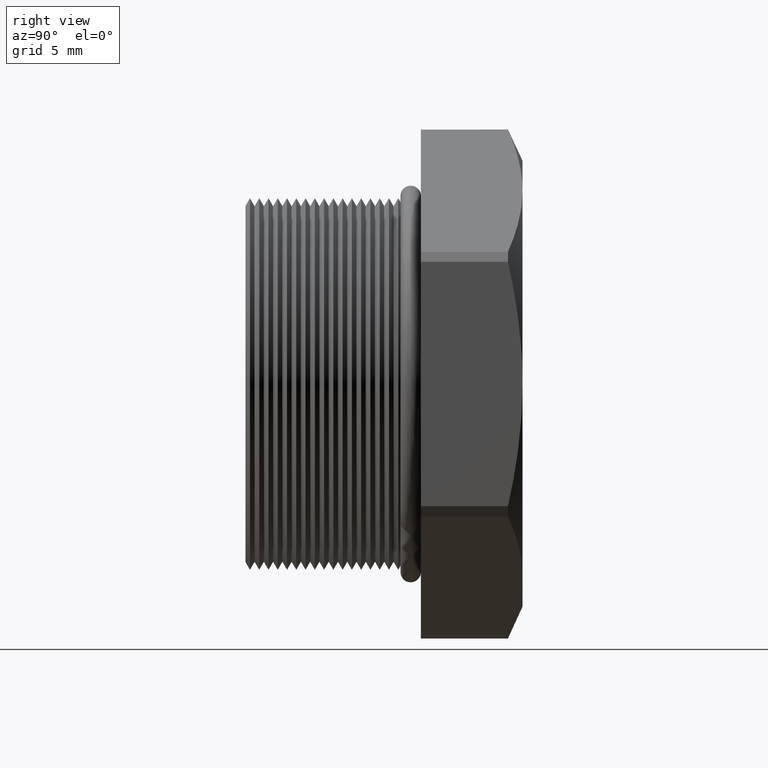
[diagram: clean part render]
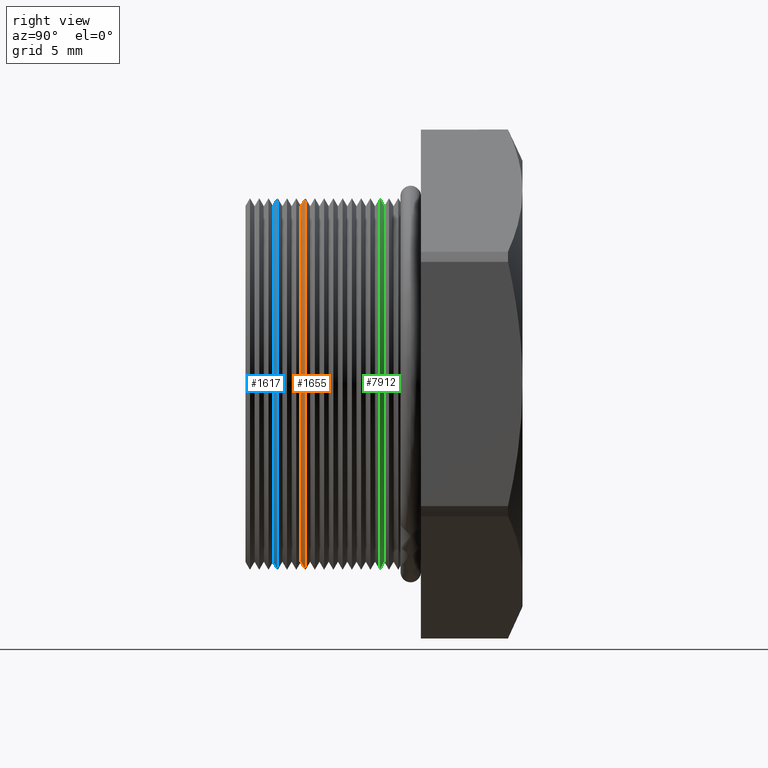
[diagram: same view with three faces highlighted in distinct colors, each labeled with its STEP entity id]
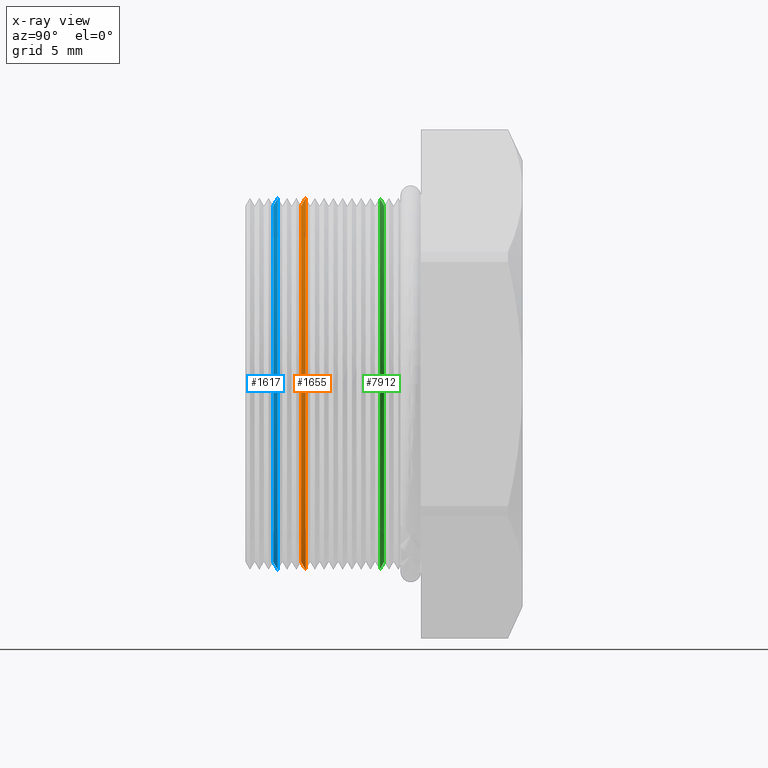
[diagram: x-ray of the same camera — body ghosted, the three highlighted faces saturated]
A machine part, right view with three faces highlighted in distinct colors.
The next image is the same camera in x-ray (body ghosted, the three faces saturated) — at least one of them is partly hidden behind the body in this view.
Their STEP definitions:

[orange] entity #1655 — the highlighted conical surface has half-angle 60 deg.
#1655 = ADVANCED_FACE ( 'NONE', ( #5710 ), #5709, .T. ) ;
#1708 = EDGE_LOOP ( 'NONE', ( #1709, #1713, #1716, #1719 ) ) ;
#1709 = ORIENTED_EDGE ( 'NONE', *, *, #1710, .T. ) ;
#1710 = EDGE_CURVE ( 'NONE', #1711, #1712, #5789, .T. ) ;
#1711 = VERTEX_POINT ( 'NONE', #5784 ) ;
#1712 = VERTEX_POINT ( 'NONE', #5783 ) ;
#1713 = ORIENTED_EDGE ( 'NONE', *, *, #1714, .T. ) ;
#1714 = EDGE_CURVE ( 'NONE', #1712, #1715, #5782, .T. ) ;
#1715 = VERTEX_POINT ( 'NONE', #5778 ) ;
#1716 = ORIENTED_EDGE ( 'NONE', *, *, #1717, .F. ) ;
#1717 = EDGE_CURVE ( 'NONE', #1718, #1715, #5840, .T. ) ;
#1718 = VERTEX_POINT ( 'NONE', #5835 ) ;
#1719 = ORIENTED_EDGE ( 'NONE', *, *, #1720, .F. ) ;
#1720 = EDGE_CURVE ( 'NONE', #1711, #1718, #5834, .T. ) ;
#5705 = DIRECTION ( 'NONE',  ( 0.0000000000000000000, 0.0000000000000000000, 1.000000000000000000 ) ) ;
#5706 = DIRECTION ( 'NONE',  ( -0.0000000000000000000, 1.000000000000000000, -0.0000000000000000000 ) ) ;
#5707 = CARTESIAN_POINT ( 'NONE',  ( 0.0000000000000000000, 0.02355489058294799000, 0.0000000000000000000 ) ) ;
#5708 = AXIS2_PLACEMENT_3D ( 'NONE', #5707, #5706, #5705 ) ;
#5709 = CONICAL_SURFACE ( 'NONE', #5708, 0.3287738815610546400, 1.047197551196596700 ) ;
#5710 = FACE_OUTER_BOUND ( 'NONE', #1708, .T. ) ;
#5778 = CARTESIAN_POINT ( 'NONE',  ( 0.0000000000000000000, 0.02355489058294799000, -0.3287738815610546400 ) ) ;
#5779 = DIRECTION ( 'NONE',  ( 1.060575238724906300E-016, 0.5000000000000008900, -0.8660254037844380400 ) ) ;
#5780 = VECTOR ( 'NONE', #5779, 39.37007874015748100 ) ;
#5781 = CARTESIAN_POINT ( 'NONE',  ( 4.026318816969965600E-017, 0.02355489058294799000, -0.3287738815610546400 ) ) ;
#5782 = LINE ( 'NONE', #5781, #5780 ) ;
#5783 = CARTESIAN_POINT ( 'NONE',  ( 0.0000000000000000000, 0.01560253635588704600, -0.3150000000000000000 ) ) ;
#5784 = CARTESIAN_POINT ( 'NONE',  ( 3.857637417314162700E-017, 0.01560253635588704600, 0.3150000000000000000 ) ) ;
#5785 = DIRECTION ( 'NONE',  ( 0.0000000000000000000, 0.0000000000000000000, 1.000000000000000000 ) ) ;
#5786 = DIRECTION ( 'NONE',  ( -0.0000000000000000000, 1.000000000000000000, -0.0000000000000000000 ) ) ;
#5787 = CARTESIAN_POINT ( 'NONE',  ( 0.0000000000000000000, 0.01560253635588704600, 0.0000000000000000000 ) ) ;
#5788 = AXIS2_PLACEMENT_3D ( 'NONE', #5787, #5786, #5785 ) ;
#5789 = CIRCLE ( 'NONE', #5788, 0.3150000000000000000 ) ;
#5831 = DIRECTION ( 'NONE',  ( 0.0000000000000000000, 0.5000000000000008900, 0.8660254037844380400 ) ) ;
#5832 = VECTOR ( 'NONE', #5831, 39.37007874015748100 ) ;
#5833 = CARTESIAN_POINT ( 'NONE',  ( 0.0000000000000000000, 0.02355489058294799000, 0.3287738815610546400 ) ) ;
#5834 = LINE ( 'NONE', #5833, #5832 ) ;
#5835 = CARTESIAN_POINT ( 'NONE',  ( 4.026318816969966200E-017, 0.02355489058294799000, 0.3287738815610546400 ) ) ;
#5836 = DIRECTION ( 'NONE',  ( 0.0000000000000000000, 0.0000000000000000000, 1.000000000000000000 ) ) ;
#5837 = DIRECTION ( 'NONE',  ( -0.0000000000000000000, 1.000000000000000000, -0.0000000000000000000 ) ) ;
#5838 = CARTESIAN_POINT ( 'NONE',  ( 0.0000000000000000000, 0.02355489058294799000, 0.0000000000000000000 ) ) ;
#5839 = AXIS2_PLACEMENT_3D ( 'NONE', #5838, #5837, #5836 ) ;
#5840 = CIRCLE ( 'NONE', #5839, 0.3287738815610546400 ) ;

[blue] entity #1617 — the highlighted conical surface has half-angle 60 deg.
#1617 = ADVANCED_FACE ( 'NONE', ( #5597 ), #5596, .T. ) ;
#1618 = ORIENTED_EDGE ( 'NONE', *, *, #1619, .T. ) ;
#1619 = EDGE_CURVE ( 'NONE', #1620, #1621, #5653, .T. ) ;
#1620 = VERTEX_POINT ( 'NONE', #5648 ) ;
#1621 = VERTEX_POINT ( 'NONE', #5647 ) ;
#1622 = ORIENTED_EDGE ( 'NONE', *, *, #1623, .T. ) ;
#1623 = EDGE_CURVE ( 'NONE', #1621, #1624, #5646, .T. ) ;
#1624 = VERTEX_POINT ( 'NONE', #5642 ) ;
#1625 = ORIENTED_EDGE ( 'NONE', *, *, #1626, .F. ) ;
#1626 = EDGE_CURVE ( 'NONE', #1627, #1624, #5641, .T. ) ;
#1627 = VERTEX_POINT ( 'NONE', #5636 ) ;
#1628 = ORIENTED_EDGE ( 'NONE', *, *, #1629, .F. ) ;
#1629 = EDGE_CURVE ( 'NONE', #1620, #1627, #5635, .T. ) ;
#1644 = EDGE_LOOP ( 'NONE', ( #1618, #1622, #1625, #1628 ) ) ;
#5592 = DIRECTION ( 'NONE',  ( 0.0000000000000000000, 0.0000000000000000000, 1.000000000000000000 ) ) ;
#5593 = DIRECTION ( 'NONE',  ( -0.0000000000000000000, 1.000000000000000000, -0.0000000000000000000 ) ) ;
#5594 = CARTESIAN_POINT ( 'NONE',  ( 0.0000000000000000000, -0.02564510941705199300, 0.0000000000000000000 ) ) ;
#5595 = AXIS2_PLACEMENT_3D ( 'NONE', #5594, #5593, #5592 ) ;
#5596 = CONICAL_SURFACE ( 'NONE', #5595, 0.3287738815610546400, 1.047197551196596700 ) ;
#5597 = FACE_OUTER_BOUND ( 'NONE', #1644, .T. ) ;
#5632 = DIRECTION ( 'NONE',  ( 0.0000000000000000000, 0.5000000000000008900, 0.8660254037844380400 ) ) ;
#5633 = VECTOR ( 'NONE', #5632, 39.37007874015748100 ) ;
#5634 = CARTESIAN_POINT ( 'NONE',  ( 0.0000000000000000000, -0.02564510941705199300, 0.3287738815610546400 ) ) ;
#5635 = LINE ( 'NONE', #5634, #5633 ) ;
#5636 = CARTESIAN_POINT ( 'NONE',  ( 4.026318816969966200E-017, -0.02564510941705199300, 0.3287738815610546400 ) ) ;
#5637 = DIRECTION ( 'NONE',  ( 0.0000000000000000000, 0.0000000000000000000, 1.000000000000000000 ) ) ;
#5638 = DIRECTION ( 'NONE',  ( -0.0000000000000000000, 1.000000000000000000, -0.0000000000000000000 ) ) ;
#5639 = CARTESIAN_POINT ( 'NONE',  ( 0.0000000000000000000, -0.02564510941705199300, 0.0000000000000000000 ) ) ;
#5640 = AXIS2_PLACEMENT_3D ( 'NONE', #5639, #5638, #5637 ) ;
#5641 = CIRCLE ( 'NONE', #5640, 0.3287738815610546400 ) ;
#5642 = CARTESIAN_POINT ( 'NONE',  ( 0.0000000000000000000, -0.02564510941705199300, -0.3287738815610546400 ) ) ;
#5643 = DIRECTION ( 'NONE',  ( 1.060575238724906300E-016, 0.5000000000000008900, -0.8660254037844380400 ) ) ;
#5644 = VECTOR ( 'NONE', #5643, 39.37007874015748100 ) ;
#5645 = CARTESIAN_POINT ( 'NONE',  ( 4.026318816969965600E-017, -0.02564510941705199300, -0.3287738815610546400 ) ) ;
#5646 = LINE ( 'NONE', #5645, #5644 ) ;
#5647 = CARTESIAN_POINT ( 'NONE',  ( 0.0000000000000000000, -0.03359746364411293800, -0.3150000000000000000 ) ) ;
#5648 = CARTESIAN_POINT ( 'NONE',  ( 3.857637417314162700E-017, -0.03359746364411293800, 0.3150000000000000000 ) ) ;
#5649 = DIRECTION ( 'NONE',  ( 0.0000000000000000000, 0.0000000000000000000, 1.000000000000000000 ) ) ;
#5650 = DIRECTION ( 'NONE',  ( -0.0000000000000000000, 1.000000000000000000, -0.0000000000000000000 ) ) ;
#5651 = CARTESIAN_POINT ( 'NONE',  ( 0.0000000000000000000, -0.03359746364411293800, 0.0000000000000000000 ) ) ;
#5652 = AXIS2_PLACEMENT_3D ( 'NONE', #5651, #5650, #5649 ) ;
#5653 = CIRCLE ( 'NONE', #5652, 0.3150000000000000000 ) ;

[green] entity #7912 — the highlighted conical surface has half-angle 60 deg.
#7342 = CARTESIAN_POINT ( 'NONE',  ( 0.0000000000000000000, 0.1627072448100089200, -0.3150000000000000000 ) ) ;
#7344 = DIRECTION ( 'NONE',  ( 1.060575238724907500E-016, -0.4999999999999991100, 0.8660254037844391500 ) ) ;
#7345 = VECTOR ( 'NONE', #7344, 39.37007874015748100 ) ;
#7346 = CARTESIAN_POINT ( 'NONE',  ( 3.857637417314162700E-017, 0.1627072448100089200, 0.3150000000000000000 ) ) ;
#7347 = LINE ( 'NONE', #7346, #7345 ) ;
#7348 = CARTESIAN_POINT ( 'NONE',  ( 3.857637417314162700E-017, 0.1627072448100089200, 0.3150000000000000000 ) ) ;
#7384 = CARTESIAN_POINT ( 'NONE',  ( 4.026318816969966200E-017, 0.1547548905829480000, 0.3287738815610546400 ) ) ;
#7389 = DIRECTION ( 'NONE',  ( 0.0000000000000000000, 0.0000000000000000000, 1.000000000000000000 ) ) ;
#7390 = DIRECTION ( 'NONE',  ( -0.0000000000000000000, 1.000000000000000000, -0.0000000000000000000 ) ) ;
#7391 = CARTESIAN_POINT ( 'NONE',  ( 0.0000000000000000000, 0.1547548905829480000, 0.0000000000000000000 ) ) ;
#7392 = AXIS2_PLACEMENT_3D ( 'NONE', #7391, #7390, #7389 ) ;
#7393 = DIRECTION ( 'NONE',  ( 0.0000000000000000000, 0.0000000000000000000, -1.000000000000000000 ) ) ;
#7394 = DIRECTION ( 'NONE',  ( 0.0000000000000000000, -1.000000000000000000, 0.0000000000000000000 ) ) ;
#7395 = AXIS2_PLACEMENT_3D ( 'NONE', #7398, #7394, #7393 ) ;
#7396 = CONICAL_SURFACE ( 'NONE', #7395, 0.3150000000000000000, 1.047197551196598700 ) ;
#7397 = CIRCLE ( 'NONE', #7392, 0.3287738815610546400 ) ;
#7398 = CARTESIAN_POINT ( 'NONE',  ( 0.0000000000000000000, 0.1627072448100089200, 0.0000000000000000000 ) ) ;
#7399 = DIRECTION ( 'NONE',  ( 0.0000000000000000000, 0.0000000000000000000, -1.000000000000000000 ) ) ;
#7400 = DIRECTION ( 'NONE',  ( 0.0000000000000000000, -1.000000000000000000, 0.0000000000000000000 ) ) ;
#7401 = CARTESIAN_POINT ( 'NONE',  ( 0.0000000000000000000, 0.1627072448100089200, 0.0000000000000000000 ) ) ;
#7402 = AXIS2_PLACEMENT_3D ( 'NONE', #7401, #7400, #7399 ) ;
#7403 = CIRCLE ( 'NONE', #7402, 0.3150000000000000000 ) ;
#7404 = FACE_OUTER_BOUND ( 'NONE', #7911, .T. ) ;
#7434 = CARTESIAN_POINT ( 'NONE',  ( 0.0000000000000000000, 0.1547548905829480000, -0.3287738815610546400 ) ) ;
#7496 = DIRECTION ( 'NONE',  ( 0.0000000000000000000, -0.4999999999999991100, -0.8660254037844391500 ) ) ;
#7497 = VECTOR ( 'NONE', #7496, 39.37007874015748100 ) ;
#7498 = CARTESIAN_POINT ( 'NONE',  ( 0.0000000000000000000, 0.1627072448100089200, -0.3150000000000000000 ) ) ;
#7499 = LINE ( 'NONE', #7498, #7497 ) ;
#7904 = ORIENTED_EDGE ( 'NONE', *, *, #7907, .T. ) ;
#7905 = ORIENTED_EDGE ( 'NONE', *, *, #7914, .T. ) ;
#7906 = VERTEX_POINT ( 'NONE', #7348 ) ;
#7907 = EDGE_CURVE ( 'NONE', #7906, #7917, #7347, .T. ) ;
#7909 = VERTEX_POINT ( 'NONE', #7342 ) ;
#7910 = EDGE_CURVE ( 'NONE', #7909, #7906, #7403, .T. ) ;
#7911 = EDGE_LOOP ( 'NONE', ( #7913, #7904, #7905, #7964 ) ) ;
#7912 = ADVANCED_FACE ( 'NONE', ( #7404 ), #7396, .T. ) ;
#7913 = ORIENTED_EDGE ( 'NONE', *, *, #7910, .T. ) ;
#7914 = EDGE_CURVE ( 'NONE', #7917, #7925, #7397, .T. ) ;
#7917 = VERTEX_POINT ( 'NONE', #7384 ) ;
#7925 = VERTEX_POINT ( 'NONE', #7434 ) ;
#7964 = ORIENTED_EDGE ( 'NONE', *, *, #7965, .F. ) ;
#7965 = EDGE_CURVE ( 'NONE', #7909, #7925, #7499, .T. ) ;